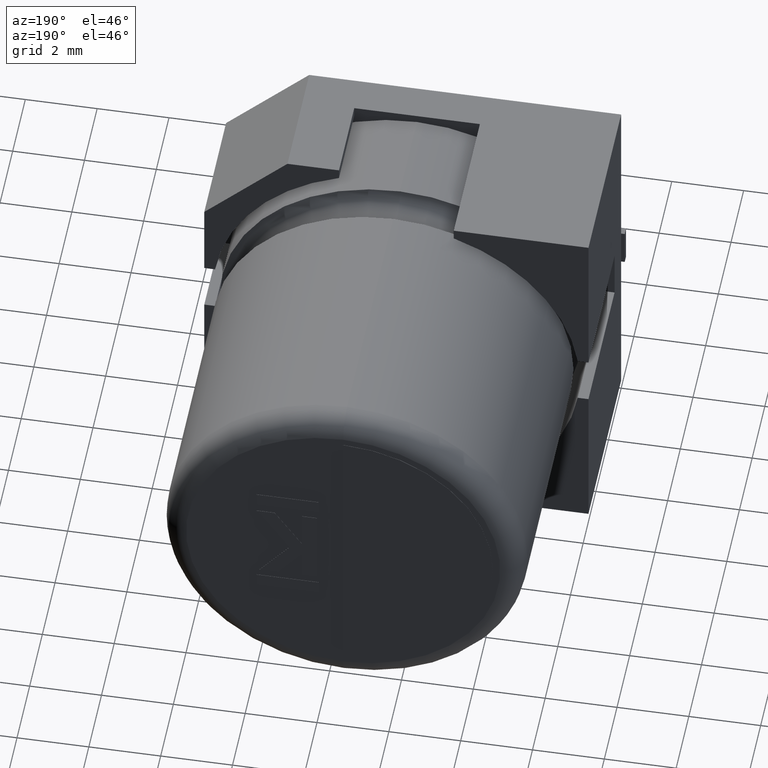
[diagram: clean part render]
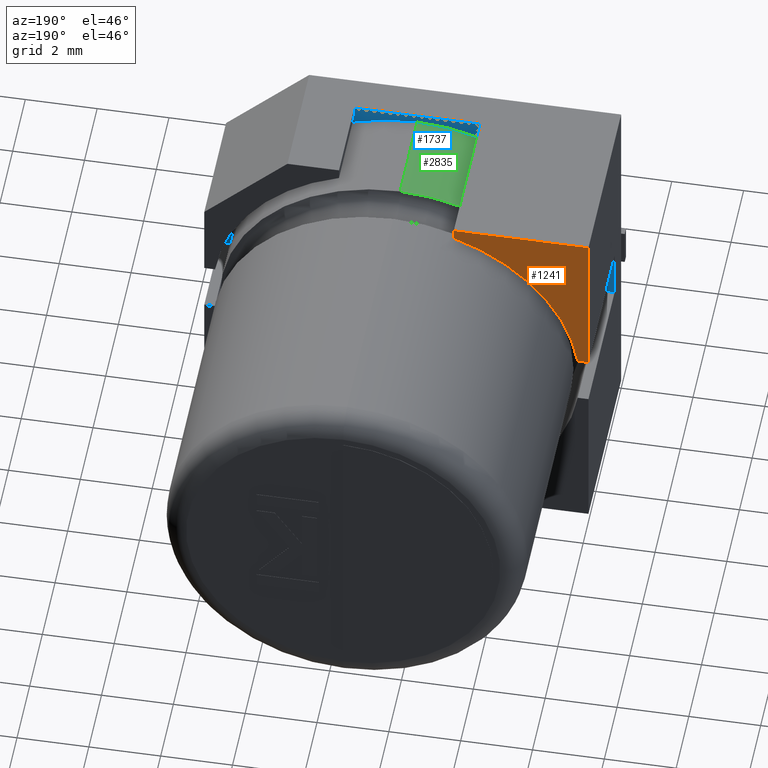
[diagram: same view with three faces highlighted in distinct colors, each labeled with its STEP entity id]
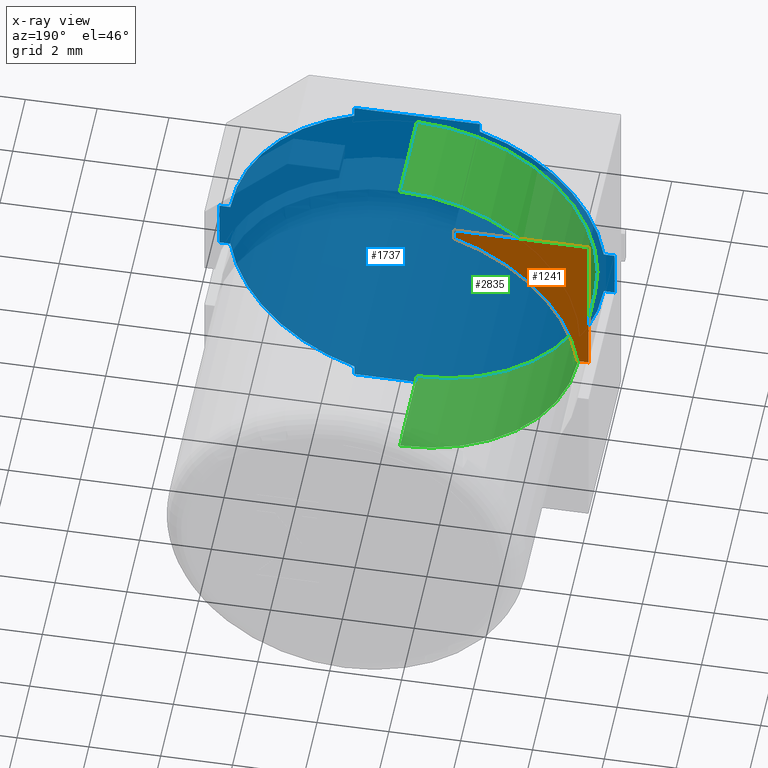
[diagram: x-ray of the same camera — body ghosted, the three highlighted faces saturated]
A machine part, auxiliary view with three faces highlighted in distinct colors.
The next image is the same camera in x-ray (body ghosted, the three faces saturated) — at least one of them is partly hidden behind the body in this view.
Their STEP definitions:

[orange] entity #1241 — the highlighted planar face has unit normal (-0, 1, 0).
#55 = VECTOR ( 'NONE', #957, 1000.000000000000000 ) ;
#120 = CARTESIAN_POINT ( 'NONE',  ( 5.500000000000000000, 5.160000000000000100, -5.250000000000000000 ) ) ;
#426 = ORIENTED_EDGE ( 'NONE', *, *, #576, .F. ) ;
#576 = EDGE_CURVE ( 'NONE', #2170, #2650, #2976, .T. ) ;
#588 = AXIS2_PLACEMENT_3D ( 'NONE', #120, #2190, #2975 ) ;
#602 = CARTESIAN_POINT ( 'NONE',  ( 0.0000000000000000000, 5.160000000000000100, -4.527158385259945700 ) ) ;
#658 = CARTESIAN_POINT ( 'NONE',  ( 0.0000000000000000000, 5.160000000000000100, 0.0000000000000000000 ) ) ;
#695 = EDGE_LOOP ( 'NONE', ( #1861, #1855, #426, #1186, #3023 ) ) ;
#723 = LINE ( 'NONE', #1493, #2728 ) ;
#957 = DIRECTION ( 'NONE',  ( 0.0000000000000000000, 0.0000000000000000000, -1.000000000000000000 ) ) ;
#962 = CARTESIAN_POINT ( 'NONE',  ( 0.2999999999999999300, 5.160000000000000100, -4.527158385259945700 ) ) ;
#975 = CARTESIAN_POINT ( 'NONE',  ( 0.0000000000000000000, 5.160000000000000100, 0.0000000000000000000 ) ) ;
#988 = VERTEX_POINT ( 'NONE', #2938 ) ;
#1037 = AXIS2_PLACEMENT_3D ( 'NONE', #1058, #2645, #1854 ) ;
#1058 = CARTESIAN_POINT ( 'NONE',  ( 0.0000000000000000000, 5.160000000000000100, 0.0000000000000000000 ) ) ;
#1084 = CARTESIAN_POINT ( 'NONE',  ( 3.750714431546409600, 5.160000000000000100, -0.0000000000000000000 ) ) ;
#1186 = ORIENTED_EDGE ( 'NONE', *, *, #1841, .T. ) ;
#1241 = ADVANCED_FACE ( 'NONE', ( #2147 ), #3156, .T. ) ;
#1270 = EDGE_CURVE ( 'NONE', #2632, #988, #3118, .T. ) ;
#1395 = VECTOR ( 'NONE', #2554, 1000.000000000000000 ) ;
#1426 = VECTOR ( 'NONE', #3072, 1000.000000000000000 ) ;
#1493 = CARTESIAN_POINT ( 'NONE',  ( 0.0000000000000000000, 5.160000000000000100, -4.527158385259945700 ) ) ;
#1517 = LINE ( 'NONE', #975, #1426 ) ;
#1535 = DIRECTION ( 'NONE',  ( -1.000000000000000000, 0.0000000000000000000, 0.0000000000000000000 ) ) ;
#1841 = EDGE_CURVE ( 'NONE', #2170, #988, #1517, .T. ) ;
#1854 = DIRECTION ( 'NONE',  ( 0.0000000000000000000, -0.0000000000000000000, 1.000000000000000000 ) ) ;
#1855 = ORIENTED_EDGE ( 'NONE', *, *, #1862, .T. ) ;
#1858 = VERTEX_POINT ( 'NONE', #962 ) ;
#1861 = ORIENTED_EDGE ( 'NONE', *, *, #2628, .F. ) ;
#1862 = EDGE_CURVE ( 'NONE', #1858, #2650, #723, .T. ) ;
#1990 = CIRCLE ( 'NONE', #588, 5.250000000000000900 ) ;
#2147 = FACE_OUTER_BOUND ( 'NONE', #695, .T. ) ;
#2170 = VERTEX_POINT ( 'NONE', #2183 ) ;
#2183 = CARTESIAN_POINT ( 'NONE',  ( 0.0000000000000000000, 5.160000000000000100, 0.0000000000000000000 ) ) ;
#2190 = DIRECTION ( 'NONE',  ( 0.0000000000000000000, 1.000000000000000000, -0.0000000000000000000 ) ) ;
#2554 = DIRECTION ( 'NONE',  ( 0.0000000000000000000, 0.0000000000000000000, 1.000000000000000000 ) ) ;
#2628 = EDGE_CURVE ( 'NONE', #1858, #2632, #1990, .T. ) ;
#2632 = VERTEX_POINT ( 'NONE', #3227 ) ;
#2645 = DIRECTION ( 'NONE',  ( -0.0000000000000000000, 1.000000000000000000, 0.0000000000000000000 ) ) ;
#2650 = VERTEX_POINT ( 'NONE', #602 ) ;
#2728 = VECTOR ( 'NONE', #1535, 1000.000000000000000 ) ;
#2938 = CARTESIAN_POINT ( 'NONE',  ( 3.750714431546409600, 5.160000000000000100, 0.0000000000000000000 ) ) ;
#2975 = DIRECTION ( 'NONE',  ( 0.0000000000000000000, 0.0000000000000000000, 1.000000000000000000 ) ) ;
#2976 = LINE ( 'NONE', #658, #55 ) ;
#3023 = ORIENTED_EDGE ( 'NONE', *, *, #1270, .F. ) ;
#3072 = DIRECTION ( 'NONE',  ( 1.000000000000000000, 0.0000000000000000000, 0.0000000000000000000 ) ) ;
#3118 = LINE ( 'NONE', #1084, #1395 ) ;
#3156 = PLANE ( 'NONE',  #1037 ) ;
#3227 = CARTESIAN_POINT ( 'NONE',  ( 3.750714431546409600, 5.160000000000000100, -0.2999999999999999300 ) ) ;

[blue] entity #1737 — the highlighted planar face has unit normal (0, 1, -0).
#25 = EDGE_CURVE ( 'NONE', #2740, #2020, #2131, .T. ) ;
#38 = DIRECTION ( 'NONE',  ( 0.0000000000000000000, 0.0000000000000000000, 1.000000000000000000 ) ) ;
#88 = EDGE_CURVE ( 'NONE', #2176, #2296, #2414, .T. ) ;
#95 = CARTESIAN_POINT ( 'NONE',  ( 7.249285568453590400, 1.032000000000000700, -10.50000000000000000 ) ) ;
#156 = EDGE_CURVE ( 'NONE', #1678, #1770, #339, .T. ) ;
#178 = LINE ( 'NONE', #2610, #844 ) ;
#207 = CARTESIAN_POINT ( 'NONE',  ( 0.0000000000000000000, 1.032000000000000700, -4.527158385259945700 ) ) ;
#236 = ORIENTED_EDGE ( 'NONE', *, *, #1647, .T. ) ;
#249 = ORIENTED_EDGE ( 'NONE', *, *, #557, .T. ) ;
#265 = EDGE_CURVE ( 'NONE', #2074, #2868, #1706, .T. ) ;
#339 = LINE ( 'NONE', #682, #1882 ) ;
#443 = EDGE_CURVE ( 'NONE', #2176, #2773, #1704, .T. ) ;
#445 = ORIENTED_EDGE ( 'NONE', *, *, #156, .T. ) ;
#468 = AXIS2_PLACEMENT_3D ( 'NONE', #1262, #3356, #3331 ) ;
#532 = ORIENTED_EDGE ( 'NONE', *, *, #88, .T. ) ;
#541 = CARTESIAN_POINT ( 'NONE',  ( 3.750714431546409600, 1.032000000000000700, 0.0000000000000000000 ) ) ;
#557 = EDGE_CURVE ( 'NONE', #1119, #1145, #2847, .T. ) ;
#567 = DIRECTION ( 'NONE',  ( 0.0000000000000000000, 0.0000000000000000000, -1.000000000000000000 ) ) ;
#568 = ORIENTED_EDGE ( 'NONE', *, *, #265, .F. ) ;
#590 = CIRCLE ( 'NONE', #2510, 5.250000000000000000 ) ;
#617 = EDGE_CURVE ( 'NONE', #1770, #1142, #1415, .T. ) ;
#644 = DIRECTION ( 'NONE',  ( 0.0000000000000000000, 0.0000000000000000000, -1.000000000000000000 ) ) ;
#682 = CARTESIAN_POINT ( 'NONE',  ( 7.249285568453590400, 1.032000000000000700, 0.0000000000000000000 ) ) ;
#707 = VECTOR ( 'NONE', #3026, 1000.000000000000000 ) ;
#714 = DIRECTION ( 'NONE',  ( 1.000000000000000000, -0.0000000000000000000, 0.0000000000000000000 ) ) ;
#754 = EDGE_CURVE ( 'NONE', #1893, #1145, #2276, .T. ) ;
#775 = ORIENTED_EDGE ( 'NONE', *, *, #25, .T. ) ;
#785 = LINE ( 'NONE', #2235, #3001 ) ;
#802 = VECTOR ( 'NONE', #714, 1000.000000000000000 ) ;
#815 = AXIS2_PLACEMENT_3D ( 'NONE', #3056, #2245, #1502 ) ;
#844 = VECTOR ( 'NONE', #1332, 1000.000000000000000 ) ;
#856 = LINE ( 'NONE', #1130, #1606 ) ;
#868 = CARTESIAN_POINT ( 'NONE',  ( 5.500000000000000000, 1.032000000000000700, -5.250000000000000000 ) ) ;
#876 = DIRECTION ( 'NONE',  ( 0.0000000000000000000, 1.000000000000000000, -0.0000000000000000000 ) ) ;
#886 = VECTOR ( 'NONE', #1156, 1000.000000000000000 ) ;
#942 = CARTESIAN_POINT ( 'NONE',  ( 0.0000000000000000000, 1.032000000000000700, -4.527158385259945700 ) ) ;
#955 = EDGE_CURVE ( 'NONE', #1442, #2384, #1299, .T. ) ;
#1009 = CARTESIAN_POINT ( 'NONE',  ( 0.0000000000000000000, 1.032000000000000700, 0.0000000000000000000 ) ) ;
#1068 = VECTOR ( 'NONE', #567, 1000.000000000000000 ) ;
#1088 = VECTOR ( 'NONE', #2125, 1000.000000000000000 ) ;
#1119 = VERTEX_POINT ( 'NONE', #2710 ) ;
#1130 = CARTESIAN_POINT ( 'NONE',  ( 0.0000000000000000000, 1.032000000000000700, -5.972841614740055100 ) ) ;
#1142 = VERTEX_POINT ( 'NONE', #1206 ) ;
#1145 = VERTEX_POINT ( 'NONE', #942 ) ;
#1156 = DIRECTION ( 'NONE',  ( 0.0000000000000000000, 0.0000000000000000000, 1.000000000000000000 ) ) ;
#1201 = CARTESIAN_POINT ( 'NONE',  ( 0.0000000000000000000, 1.032000000000000700, 0.0000000000000000000 ) ) ;
#1206 = CARTESIAN_POINT ( 'NONE',  ( 3.750714431546409200, 1.032000000000000700, -10.50000000000000000 ) ) ;
#1246 = ORIENTED_EDGE ( 'NONE', *, *, #2026, .T. ) ;
#1262 = CARTESIAN_POINT ( 'NONE',  ( 5.500000000000000000, 1.032000000000000700, -5.250000000000000000 ) ) ;
#1294 = ORIENTED_EDGE ( 'NONE', *, *, #617, .T. ) ;
#1299 = CIRCLE ( 'NONE', #1669, 5.250000000000000900 ) ;
#1327 = ORIENTED_EDGE ( 'NONE', *, *, #443, .F. ) ;
#1332 = DIRECTION ( 'NONE',  ( 1.000000000000000000, -0.0000000000000000000, 0.0000000000000000000 ) ) ;
#1402 = EDGE_CURVE ( 'NONE', #2116, #2868, #2215, .T. ) ;
#1407 = CARTESIAN_POINT ( 'NONE',  ( 3.750714431546409600, 1.032000000000000700, -0.2999999999999999300 ) ) ;
#1415 = LINE ( 'NONE', #2006, #707 ) ;
#1416 = EDGE_CURVE ( 'NONE', #2384, #1119, #856, .T. ) ;
#1442 = VERTEX_POINT ( 'NONE', #3198 ) ;
#1491 = ORIENTED_EDGE ( 'NONE', *, *, #3130, .T. ) ;
#1495 = CARTESIAN_POINT ( 'NONE',  ( 0.0000000000000000000, 1.032000000000000700, -5.972841614740040100 ) ) ;
#1502 = DIRECTION ( 'NONE',  ( 0.0000000000000000000, 0.0000000000000000000, 1.000000000000000000 ) ) ;
#1511 = ORIENTED_EDGE ( 'NONE', *, *, #1402, .T. ) ;
#1516 = EDGE_LOOP ( 'NONE', ( #2492, #236, #775, #1491, #1327, #532, #1762, #1511, #568, #1246, #445, #1294, #1725, #3251, #1773, #249 ) ) ;
#1519 = DIRECTION ( 'NONE',  ( 0.0000000000000000000, 1.000000000000000000, -0.0000000000000000000 ) ) ;
#1606 = VECTOR ( 'NONE', #1649, 1000.000000000000000 ) ;
#1626 = CARTESIAN_POINT ( 'NONE',  ( 11.00000000000000000, 1.032000000000000700, 0.0000000000000000000 ) ) ;
#1647 = EDGE_CURVE ( 'NONE', #1893, #2740, #2899, .T. ) ;
#1649 = DIRECTION ( 'NONE',  ( -1.000000000000000000, 0.0000000000000000000, 0.0000000000000000000 ) ) ;
#1669 = AXIS2_PLACEMENT_3D ( 'NONE', #2425, #3212, #2948 ) ;
#1678 = VERTEX_POINT ( 'NONE', #2764 ) ;
#1704 = LINE ( 'NONE', #3197, #2204 ) ;
#1706 = LINE ( 'NONE', #1495, #802 ) ;
#1725 = ORIENTED_EDGE ( 'NONE', *, *, #3157, .F. ) ;
#1737 = ADVANCED_FACE ( 'NONE', ( #3229 ), #3390, .T. ) ;
#1751 = DIRECTION ( 'NONE',  ( 1.000000000000000000, -0.0000000000000000000, 0.0000000000000000000 ) ) ;
#1756 = CARTESIAN_POINT ( 'NONE',  ( 0.2999999999999999900, 1.032000000000000700, -4.527158385259945700 ) ) ;
#1762 = ORIENTED_EDGE ( 'NONE', *, *, #2452, .T. ) ;
#1770 = VERTEX_POINT ( 'NONE', #95 ) ;
#1773 = ORIENTED_EDGE ( 'NONE', *, *, #1416, .T. ) ;
#1851 = CARTESIAN_POINT ( 'NONE',  ( 10.70000000000000100, 1.032000000000000700, -4.527158385259960800 ) ) ;
#1882 = VECTOR ( 'NONE', #2063, 1000.000000000000000 ) ;
#1893 = VERTEX_POINT ( 'NONE', #1756 ) ;
#1983 = VECTOR ( 'NONE', #1751, 1000.000000000000000 ) ;
#1993 = DIRECTION ( 'NONE',  ( 0.0000000000000000000, 0.0000000000000000000, 1.000000000000000000 ) ) ;
#2006 = CARTESIAN_POINT ( 'NONE',  ( 0.0000000000000000000, 1.032000000000000700, -10.50000000000000000 ) ) ;
#2020 = VERTEX_POINT ( 'NONE', #541 ) ;
#2026 = EDGE_CURVE ( 'NONE', #2074, #1678, #590, .T. ) ;
#2063 = DIRECTION ( 'NONE',  ( 0.0000000000000000000, 0.0000000000000000000, -1.000000000000000000 ) ) ;
#2074 = VERTEX_POINT ( 'NONE', #2696 ) ;
#2116 = VERTEX_POINT ( 'NONE', #3218 ) ;
#2125 = DIRECTION ( 'NONE',  ( -1.000000000000000000, 0.0000000000000000000, 0.0000000000000000000 ) ) ;
#2128 = VECTOR ( 'NONE', #1993, 1000.000000000000000 ) ;
#2131 = LINE ( 'NONE', #2711, #886 ) ;
#2176 = VERTEX_POINT ( 'NONE', #2797 ) ;
#2189 = LINE ( 'NONE', #2266, #1983 ) ;
#2204 = VECTOR ( 'NONE', #38, 1000.000000000000000 ) ;
#2215 = LINE ( 'NONE', #1626, #1068 ) ;
#2235 = CARTESIAN_POINT ( 'NONE',  ( 3.750714431546409200, 1.032000000000000700, 0.0000000000000000000 ) ) ;
#2245 = DIRECTION ( 'NONE',  ( 0.0000000000000000000, 1.000000000000000000, -0.0000000000000000000 ) ) ;
#2266 = CARTESIAN_POINT ( 'NONE',  ( 0.0000000000000000000, 1.032000000000000700, 0.0000000000000000000 ) ) ;
#2276 = LINE ( 'NONE', #207, #1088 ) ;
#2296 = VERTEX_POINT ( 'NONE', #1851 ) ;
#2384 = VERTEX_POINT ( 'NONE', #2860 ) ;
#2414 = CIRCLE ( 'NONE', #468, 5.250000000000000000 ) ;
#2425 = CARTESIAN_POINT ( 'NONE',  ( 5.500000000000000000, 1.032000000000000700, -5.250000000000000000 ) ) ;
#2452 = EDGE_CURVE ( 'NONE', #2296, #2116, #178, .T. ) ;
#2472 = CARTESIAN_POINT ( 'NONE',  ( 7.249285568453589500, 1.032000000000000700, 0.0000000000000000000 ) ) ;
#2492 = ORIENTED_EDGE ( 'NONE', *, *, #754, .F. ) ;
#2510 = AXIS2_PLACEMENT_3D ( 'NONE', #868, #876, #2741 ) ;
#2558 = CARTESIAN_POINT ( 'NONE',  ( 11.00000000000000000, 1.032000000000000700, -5.972841614740040100 ) ) ;
#2610 = CARTESIAN_POINT ( 'NONE',  ( 0.0000000000000000000, 1.032000000000000700, -4.527158385259960800 ) ) ;
#2696 = CARTESIAN_POINT ( 'NONE',  ( 10.70000000000000100, 1.032000000000000700, -5.972841614740040100 ) ) ;
#2710 = CARTESIAN_POINT ( 'NONE',  ( 0.0000000000000000000, 1.032000000000000700, -5.972841614740055100 ) ) ;
#2711 = CARTESIAN_POINT ( 'NONE',  ( 3.750714431546409600, 1.032000000000000700, 0.0000000000000000000 ) ) ;
#2740 = VERTEX_POINT ( 'NONE', #1407 ) ;
#2741 = DIRECTION ( 'NONE',  ( 0.0000000000000000000, 0.0000000000000000000, 1.000000000000000000 ) ) ;
#2764 = CARTESIAN_POINT ( 'NONE',  ( 7.249285568453590400, 1.032000000000000700, -10.20000000000000100 ) ) ;
#2773 = VERTEX_POINT ( 'NONE', #2472 ) ;
#2797 = CARTESIAN_POINT ( 'NONE',  ( 7.249285568453589500, 1.032000000000000700, -0.2999999999999999300 ) ) ;
#2839 = DIRECTION ( 'NONE',  ( 0.0000000000000000000, 0.0000000000000000000, 1.000000000000000000 ) ) ;
#2847 = LINE ( 'NONE', #1201, #2128 ) ;
#2860 = CARTESIAN_POINT ( 'NONE',  ( 0.2999999999999999900, 1.032000000000000700, -5.972841614740055100 ) ) ;
#2868 = VERTEX_POINT ( 'NONE', #2558 ) ;
#2899 = CIRCLE ( 'NONE', #815, 5.250000000000000900 ) ;
#2948 = DIRECTION ( 'NONE',  ( 0.0000000000000000000, 0.0000000000000000000, 1.000000000000000000 ) ) ;
#3001 = VECTOR ( 'NONE', #644, 1000.000000000000000 ) ;
#3026 = DIRECTION ( 'NONE',  ( -1.000000000000000000, 0.0000000000000000000, 0.0000000000000000000 ) ) ;
#3056 = CARTESIAN_POINT ( 'NONE',  ( 5.500000000000000000, 1.032000000000000700, -5.250000000000000000 ) ) ;
#3079 = AXIS2_PLACEMENT_3D ( 'NONE', #1009, #1519, #2839 ) ;
#3130 = EDGE_CURVE ( 'NONE', #2020, #2773, #2189, .T. ) ;
#3157 = EDGE_CURVE ( 'NONE', #1442, #1142, #785, .T. ) ;
#3197 = CARTESIAN_POINT ( 'NONE',  ( 7.249285568453589500, 1.032000000000000700, 0.0000000000000000000 ) ) ;
#3198 = CARTESIAN_POINT ( 'NONE',  ( 3.750714431546409200, 1.032000000000000700, -10.20000000000000100 ) ) ;
#3212 = DIRECTION ( 'NONE',  ( 0.0000000000000000000, 1.000000000000000000, -0.0000000000000000000 ) ) ;
#3218 = CARTESIAN_POINT ( 'NONE',  ( 11.00000000000000000, 1.032000000000000700, -4.527158385259960800 ) ) ;
#3229 = FACE_OUTER_BOUND ( 'NONE', #1516, .T. ) ;
#3251 = ORIENTED_EDGE ( 'NONE', *, *, #955, .T. ) ;
#3331 = DIRECTION ( 'NONE',  ( 0.0000000000000000000, 0.0000000000000000000, 1.000000000000000000 ) ) ;
#3356 = DIRECTION ( 'NONE',  ( 0.0000000000000000000, 1.000000000000000000, -0.0000000000000000000 ) ) ;
#3390 = PLANE ( 'NONE',  #3079 ) ;

[green] entity #2835 — the highlighted cylindrical surface (partial cylindrical patch) has radius 5.0185 mm, axis along (-0, -1, -0).
#131 = DIRECTION ( 'NONE',  ( 0.0000000000000000000, 0.0000000000000000000, -1.000000000000000000 ) ) ;
#157 = VECTOR ( 'NONE', #2905, 1000.000000000000000 ) ;
#192 = DIRECTION ( 'NONE',  ( -0.0000000000000000000, -1.000000000000000000, -0.0000000000000000000 ) ) ;
#289 = CARTESIAN_POINT ( 'NONE',  ( 5.500000000000000000, 1.032000000000000700, -10.26847499999999900 ) ) ;
#294 = CIRCLE ( 'NONE', #472, 5.018475000000000500 ) ;
#378 = CARTESIAN_POINT ( 'NONE',  ( 5.500000000000000900, 3.719070000000000300, -0.2315250000000006500 ) ) ;
#472 = AXIS2_PLACEMENT_3D ( 'NONE', #1086, #852, #3178 ) ;
#527 = VERTEX_POINT ( 'NONE', #378 ) ;
#704 = EDGE_CURVE ( 'NONE', #3420, #1355, #1630, .T. ) ;
#852 = DIRECTION ( 'NONE',  ( 0.0000000000000000000, 1.000000000000000000, 0.0000000000000000000 ) ) ;
#899 = CARTESIAN_POINT ( 'NONE',  ( 5.500000000000000000, 3.719070000000000300, -5.250000000000000000 ) ) ;
#933 = EDGE_CURVE ( 'NONE', #1355, #2838, #294, .T. ) ;
#1078 = CARTESIAN_POINT ( 'NONE',  ( 5.500000000000000000, 3.719070000000000300, -10.26847499999999900 ) ) ;
#1086 = CARTESIAN_POINT ( 'NONE',  ( 5.500000000000000000, 1.032000000000000700, -5.249999999999999100 ) ) ;
#1247 = CARTESIAN_POINT ( 'NONE',  ( 5.500000000000000000, 12.70000000000000300, -10.26847499999999900 ) ) ;
#1307 = CARTESIAN_POINT ( 'NONE',  ( 5.500000000000000900, 12.70000000000000300, -0.2315249999999989300 ) ) ;
#1323 = LINE ( 'NONE', #1307, #157 ) ;
#1355 = VERTEX_POINT ( 'NONE', #289 ) ;
#1498 = DIRECTION ( 'NONE',  ( -0.0000000000000000000, -1.000000000000000000, -0.0000000000000000000 ) ) ;
#1539 = EDGE_LOOP ( 'NONE', ( #3191, #1681, #3368, #2448 ) ) ;
#1630 = LINE ( 'NONE', #1247, #3136 ) ;
#1681 = ORIENTED_EDGE ( 'NONE', *, *, #3219, .T. ) ;
#1693 = DIRECTION ( 'NONE',  ( 0.0000000000000000000, 0.0000000000000000000, -1.000000000000000000 ) ) ;
#2448 = ORIENTED_EDGE ( 'NONE', *, *, #933, .T. ) ;
#2480 = DIRECTION ( 'NONE',  ( -0.0000000000000000000, -1.000000000000000000, -0.0000000000000000000 ) ) ;
#2518 = CARTESIAN_POINT ( 'NONE',  ( 5.500000000000000900, 1.032000000000000700, -0.2315249999999989300 ) ) ;
#2605 = AXIS2_PLACEMENT_3D ( 'NONE', #899, #2480, #1693 ) ;
#2752 = CYLINDRICAL_SURFACE ( 'NONE', #3170, 5.018474999999999600 ) ;
#2835 = ADVANCED_FACE ( 'NONE', ( #3257 ), #2752, .T. ) ;
#2838 = VERTEX_POINT ( 'NONE', #2518 ) ;
#2905 = DIRECTION ( 'NONE',  ( -0.0000000000000000000, -1.000000000000000000, -0.0000000000000000000 ) ) ;
#3035 = CIRCLE ( 'NONE', #2605, 5.018474999999998700 ) ;
#3136 = VECTOR ( 'NONE', #192, 1000.000000000000000 ) ;
#3170 = AXIS2_PLACEMENT_3D ( 'NONE', #3294, #1498, #131 ) ;
#3178 = DIRECTION ( 'NONE',  ( 0.0000000000000000000, 0.0000000000000000000, 1.000000000000000000 ) ) ;
#3191 = ORIENTED_EDGE ( 'NONE', *, *, #3403, .F. ) ;
#3219 = EDGE_CURVE ( 'NONE', #527, #3420, #3035, .T. ) ;
#3257 = FACE_OUTER_BOUND ( 'NONE', #1539, .T. ) ;
#3294 = CARTESIAN_POINT ( 'NONE',  ( 5.500000000000000000, 12.70000000000000300, -5.249999999999999100 ) ) ;
#3368 = ORIENTED_EDGE ( 'NONE', *, *, #704, .T. ) ;
#3403 = EDGE_CURVE ( 'NONE', #527, #2838, #1323, .T. ) ;
#3420 = VERTEX_POINT ( 'NONE', #1078 ) ;